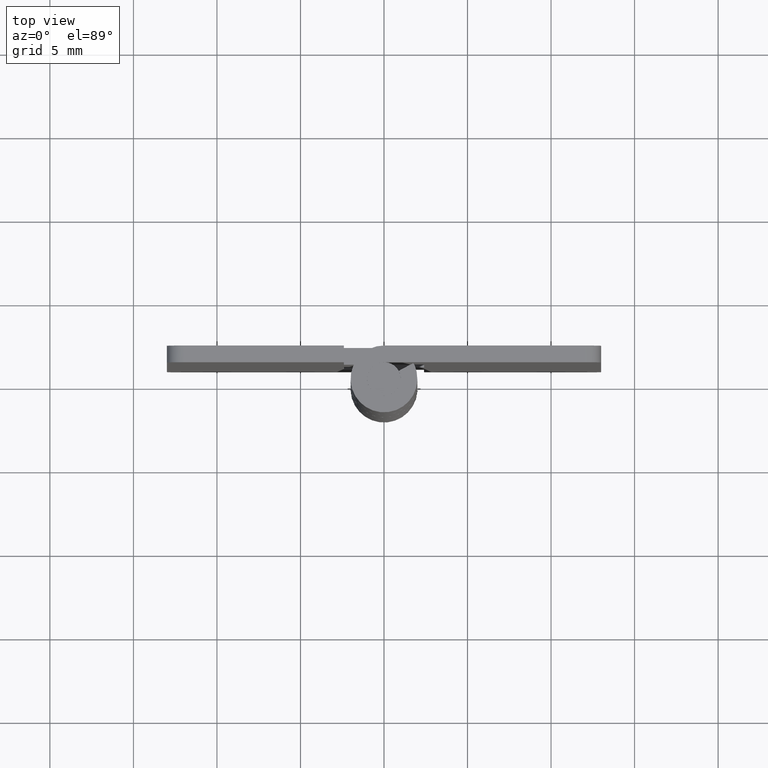
[diagram: clean part render]
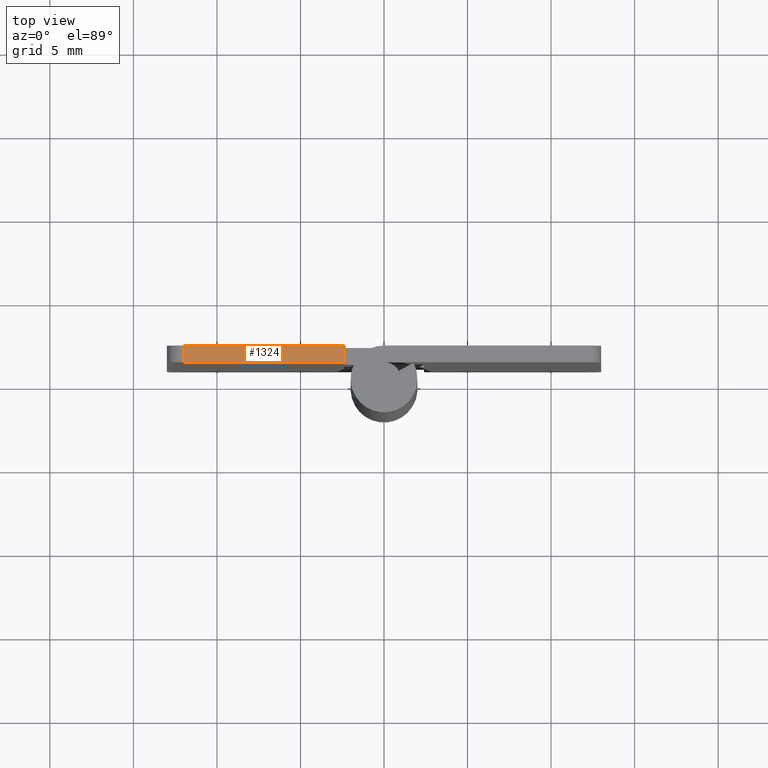
[diagram: same view with one face highlighted and labeled with its STEP entity id]
A machine part, top view. The second image highlights one B-rep face of the part: STEP entity #1324.
In plain terms, the highlighted face is a freeform B-spline surface patch.
Its self-contained STEP definition (entity closure, byte-faithful):
#825=CARTESIAN_POINT('',(-12.0,1.0,35.0));
#826=VERTEX_POINT('',#825);
#842=CARTESIAN_POINT('',(-12.0,2.0,35.0));
#843=VERTEX_POINT('',#842);
#844=CARTESIAN_POINT('',(-12.0,2.0,35.0));
#845=CARTESIAN_POINT('',(-12.0,1.0,35.0));
#846=QUASI_UNIFORM_CURVE('',1,(#844,#845),.UNSPECIFIED.,.F.,.U.);
#847=EDGE_CURVE('',#843,#826,#846,.T.);
#1193=CARTESIAN_POINT('',(-2.400002000000100,2.0,35.0));
#1194=VERTEX_POINT('',#1193);
#1200=CARTESIAN_POINT('',(-2.400002000000100,1.0,35.0));
#1201=VERTEX_POINT('',#1200);
#1202=CARTESIAN_POINT('',(-2.400002000000100,1.0,35.0));
#1203=CARTESIAN_POINT('',(-2.400002000000100,2.0,35.0));
#1204=QUASI_UNIFORM_CURVE('',1,(#1202,#1203),.UNSPECIFIED.,.F.,.U.);
#1205=EDGE_CURVE('',#1201,#1194,#1204,.T.);
#1305=CARTESIAN_POINT('',(-12.479519881493340,0.950050001938194,35.0));
#1306=CARTESIAN_POINT('',(-1.920481861014753,0.950050001938194,35.0));
#1307=CARTESIAN_POINT('',(-12.479519881493340,2.049950024883896,35.0));
#1308=CARTESIAN_POINT('',(-1.920481861014753,2.049950024883896,35.0));
#1309=B_SPLINE_SURFACE_WITH_KNOTS('',1,1,((#1305,#1307),(#1306,#1308)),.UNSPECIFIED.,.F.,.F.,.U.,(2,2),(2,2),(0.0,10.559038020478591),(0.041708334948495,0.958291687403247),.UNSPECIFIED.);
#1310=CARTESIAN_POINT('',(-12.0,2.0,35.0));
#1311=CARTESIAN_POINT('',(-2.400002000000100,2.0,35.0));
#1312=QUASI_UNIFORM_CURVE('',1,(#1310,#1311),.UNSPECIFIED.,.F.,.U.);
#1313=EDGE_CURVE('',#843,#1194,#1312,.T.);
#1314=ORIENTED_EDGE('',*,*,#1313,.F.);
#1315=ORIENTED_EDGE('',*,*,#847,.T.);
#1316=CARTESIAN_POINT('',(-2.400002000000100,1.0,35.0));
#1317=CARTESIAN_POINT('',(-12.0,1.0,35.0));
#1318=QUASI_UNIFORM_CURVE('',1,(#1316,#1317),.UNSPECIFIED.,.F.,.U.);
#1319=EDGE_CURVE('',#1201,#826,#1318,.T.);
#1320=ORIENTED_EDGE('',*,*,#1319,.F.);
#1321=ORIENTED_EDGE('',*,*,#1205,.T.);
#1322=EDGE_LOOP('',(#1314,#1315,#1320,#1321));
#1323=FACE_OUTER_BOUND('',#1322,.T.);
#1324=ADVANCED_FACE('',(#1323),#1309,.T.);